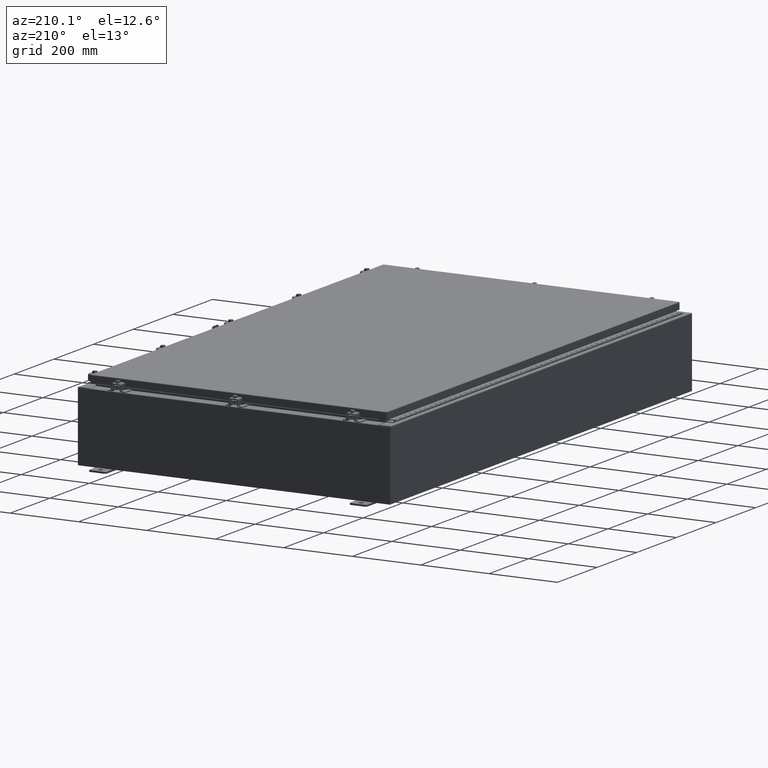
[diagram: clean part render]
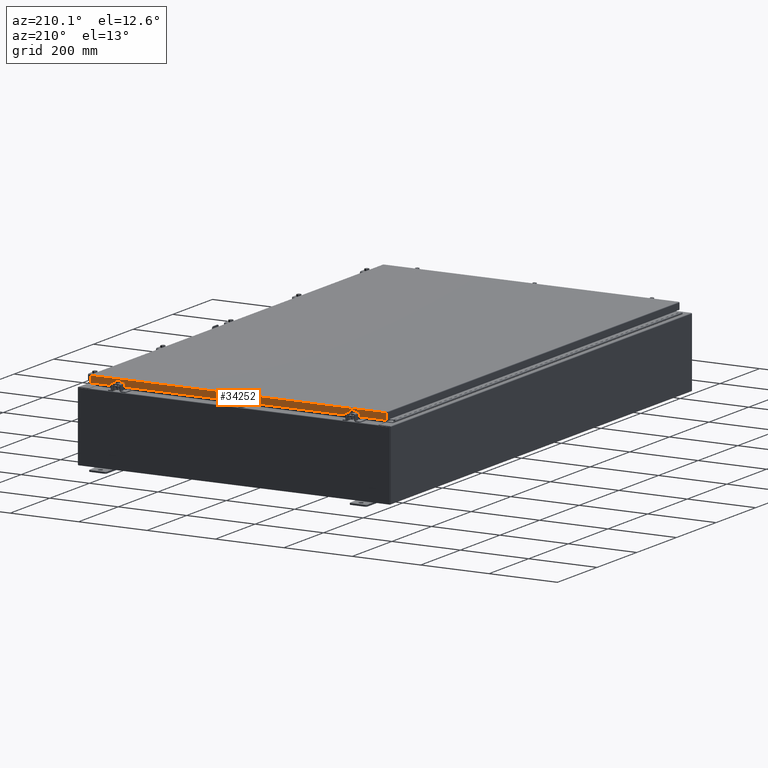
[diagram: same view with one face highlighted and labeled with its STEP entity id]
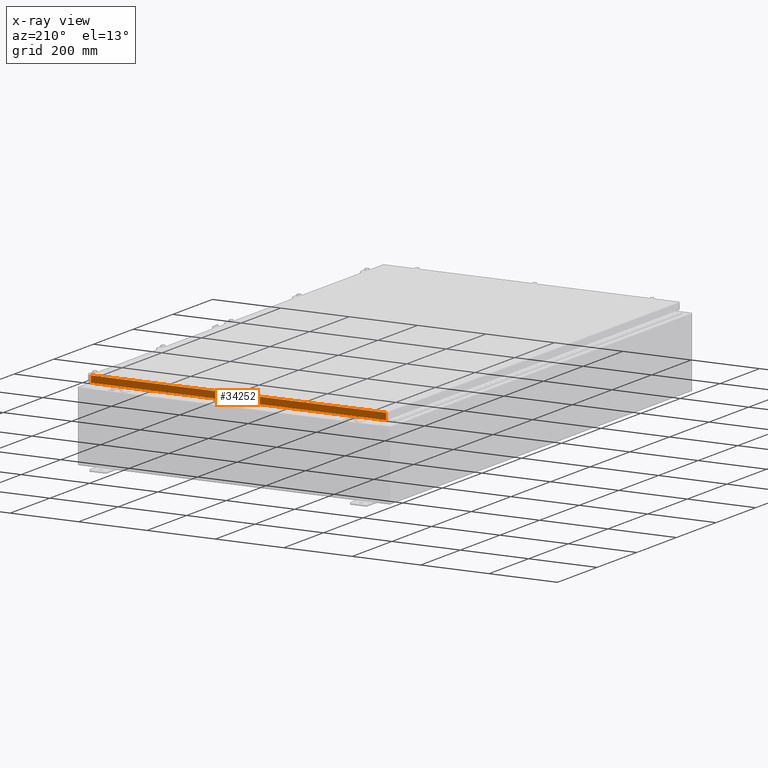
[diagram: x-ray of the same camera — body ghosted, the highlighted face saturated]
A machine part, auxiliary view. The second image highlights one B-rep face of the part: STEP entity #34252.
The next image is the same camera in x-ray: the body ghosted, the highlighted face saturated — about 0% of this face is hidden behind the body in this view.
In plain terms, the highlighted planar face has unit normal (0, -1, -0).
Its self-contained STEP definition (entity closure, byte-faithful):
#564 = CARTESIAN_POINT ( 'NONE',  ( -2.033440117909712900E-029, 29.09400000000000100, 1.642858579540487400E-013 ) ) ;
#2798 = VERTEX_POINT ( 'NONE', #14135 ) ;
#3289 = ORIENTED_EDGE ( 'NONE', *, *, #17849, .F. ) ;
#4564 = CARTESIAN_POINT ( 'NONE',  ( 16.98915786437627100, 29.09400000000000100, -0.08769999999999547600 ) ) ;
#5187 = DIRECTION ( 'NONE',  ( 1.000000000000000000, -0.0000000000000000000, -0.0000000000000000000 ) ) ;
#5462 = PLANE ( 'NONE',  #55367 ) ;
#5976 = VECTOR ( 'NONE', #13491, 39.37007874015748100 ) ;
#6029 = LINE ( 'NONE', #48444, #56291 ) ;
#6803 = ORIENTED_EDGE ( 'NONE', *, *, #59682, .F. ) ;
#7742 = ORIENTED_EDGE ( 'NONE', *, *, #38552, .F. ) ;
#8518 = DIRECTION ( 'NONE',  ( 1.000000000000000000, -0.0000000000000000000, 1.239713195391617400E-016 ) ) ;
#10352 = DIRECTION ( 'NONE',  ( 0.0000000000000000000, 5.637761885544689500E-015, -1.000000000000000000 ) ) ;
#13293 = VERTEX_POINT ( 'NONE', #55203 ) ;
#13491 = DIRECTION ( 'NONE',  ( -1.000000000000000000, -6.989207801985677300E-031, -3.922586267643528000E-045 ) ) ;
#14135 = CARTESIAN_POINT ( 'NONE',  ( -16.23915786437625600, 29.09400000000000100, -0.8500000000000037500 ) ) ;
#14604 = DIRECTION ( 'NONE',  ( -0.0000000000000000000, 5.637761885544689500E-015, -1.000000000000000000 ) ) ;
#14988 = CARTESIAN_POINT ( 'NONE',  ( -16.23915786437626400, 29.09400000000000100, -0.8500000000000037500 ) ) ;
#16620 = EDGE_CURVE ( 'NONE', #39762, #34536, #48169, .T. ) ;
#17849 = EDGE_CURVE ( 'NONE', #2798, #13293, #40199, .T. ) ;
#19325 = DIRECTION ( 'NONE',  ( 1.000000000000000000, -0.0000000000000000000, 1.239713195391617400E-016 ) ) ;
#20888 = CARTESIAN_POINT ( 'NONE',  ( -16.98915786437626400, 29.09400000000000500, -0.8500000000000038600 ) ) ;
#21266 = FACE_OUTER_BOUND ( 'NONE', #60968, .T. ) ;
#21526 = LINE ( 'NONE', #34104, #31326 ) ;
#23895 = CARTESIAN_POINT ( 'NONE',  ( 16.98915786437627100, 29.09400000000000100, 1.642858579540487400E-013 ) ) ;
#24619 = ORIENTED_EDGE ( 'NONE', *, *, #46144, .F. ) ;
#24840 = DIRECTION ( 'NONE',  ( 6.989207801985676400E-031, -1.000000000000000000, -5.637761885544689500E-015 ) ) ;
#25776 = VECTOR ( 'NONE', #5187, 39.37007874015748100 ) ;
#25856 = VECTOR ( 'NONE', #8518, 39.37007874015748100 ) ;
#26903 = CARTESIAN_POINT ( 'NONE',  ( 16.98915786437627100, 29.09400000000000500, -0.8499999999999996400 ) ) ;
#30875 = VERTEX_POINT ( 'NONE', #20888 ) ;
#31326 = VECTOR ( 'NONE', #14604, 39.37007874015748100 ) ;
#34104 = CARTESIAN_POINT ( 'NONE',  ( -16.98915786437626400, 29.09400000000000100, -0.07469999999999958600 ) ) ;
#34252 = ADVANCED_FACE ( 'NONE', ( #21266 ), #5462, .F. ) ;
#34536 = VERTEX_POINT ( 'NONE', #26903 ) ;
#37624 = CARTESIAN_POINT ( 'NONE',  ( -17.07799999999999600, 29.09400000000000500, -0.8500000000000038600 ) ) ;
#38065 = EDGE_CURVE ( 'NONE', #13293, #34536, #6029, .T. ) ;
#38552 = EDGE_CURVE ( 'NONE', #39762, #39091, #53174, .T. ) ;
#39091 = VERTEX_POINT ( 'NONE', #62500 ) ;
#39762 = VERTEX_POINT ( 'NONE', #4564 ) ;
#40199 = LINE ( 'NONE', #14988, #25776 ) ;
#46144 = EDGE_CURVE ( 'NONE', #30875, #2798, #48653, .T. ) ;
#47540 = CARTESIAN_POINT ( 'NONE',  ( -17.07799999999999600, 29.09400000000000100, -0.08769999999999547600 ) ) ;
#48169 = LINE ( 'NONE', #23895, #62620 ) ;
#48444 = CARTESIAN_POINT ( 'NONE',  ( -17.07799999999999600, 29.09400000000000500, -0.8500000000000038600 ) ) ;
#48653 = LINE ( 'NONE', #37624, #25856 ) ;
#53174 = LINE ( 'NONE', #47540, #5976 ) ;
#55203 = CARTESIAN_POINT ( 'NONE',  ( 16.23915786437627100, 29.09400000000000100, -0.8500000000000037500 ) ) ;
#55367 = AXIS2_PLACEMENT_3D ( 'NONE', #564, #24840, #10352 ) ;
#55448 = ORIENTED_EDGE ( 'NONE', *, *, #38065, .F. ) ;
#56291 = VECTOR ( 'NONE', #19325, 39.37007874015748100 ) ;
#59351 = ORIENTED_EDGE ( 'NONE', *, *, #16620, .T. ) ;
#59682 = EDGE_CURVE ( 'NONE', #39091, #30875, #21526, .T. ) ;
#60968 = EDGE_LOOP ( 'NONE', ( #7742, #59351, #55448, #3289, #24619, #6803 ) ) ;
#62500 = CARTESIAN_POINT ( 'NONE',  ( -16.98915786437626400, 29.09400000000000100, -0.08769999999999549000 ) ) ;
#62620 = VECTOR ( 'NONE', #62788, 39.37007874015748100 ) ;
#62788 = DIRECTION ( 'NONE',  ( 0.0000000000000000000, 5.637761885544689500E-015, -1.000000000000000000 ) ) ;